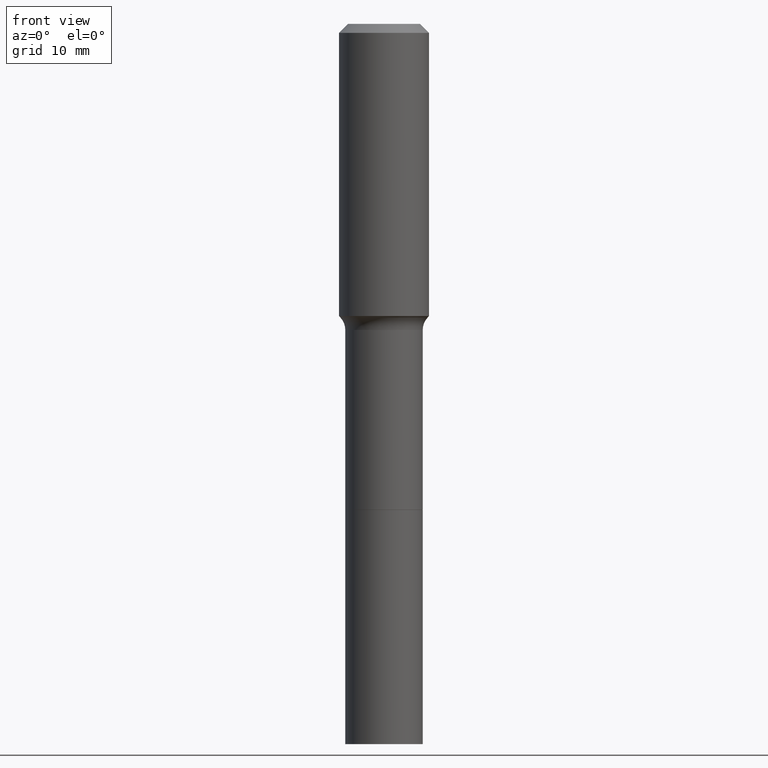
[diagram: clean part render]
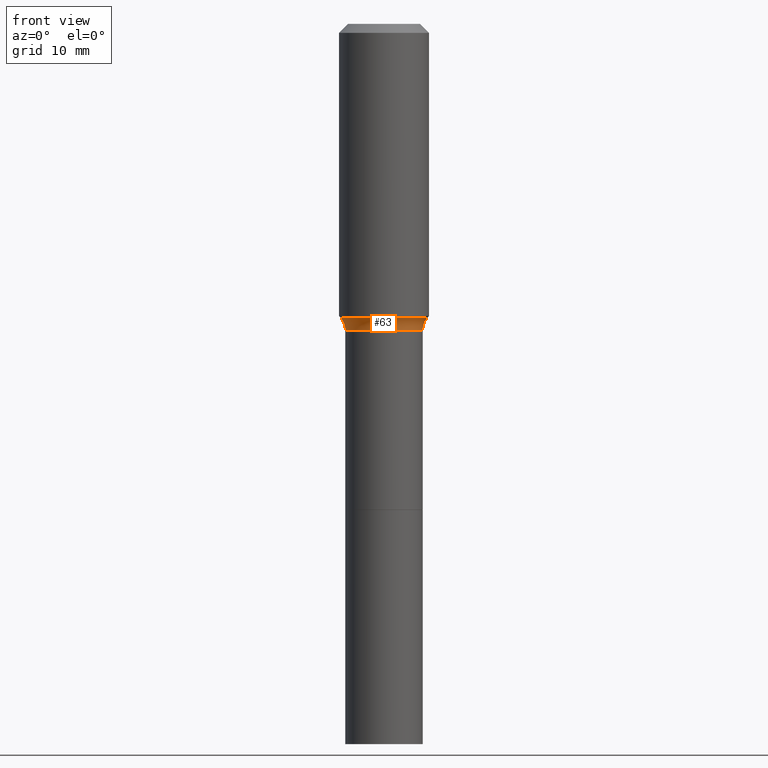
[diagram: same view with one face highlighted and labeled with its STEP entity id]
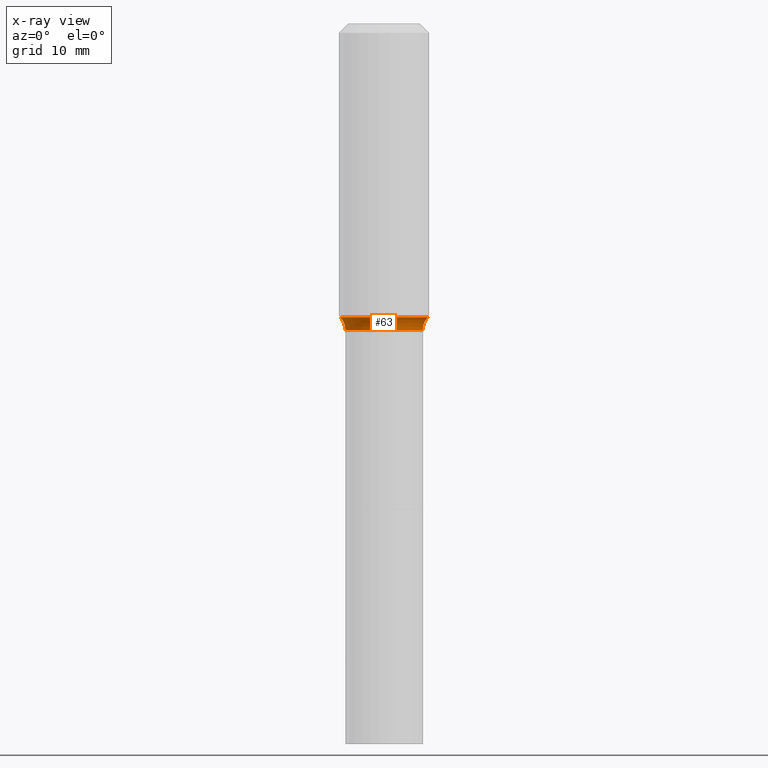
[diagram: x-ray of the same camera — body ghosted, the highlighted face saturated]
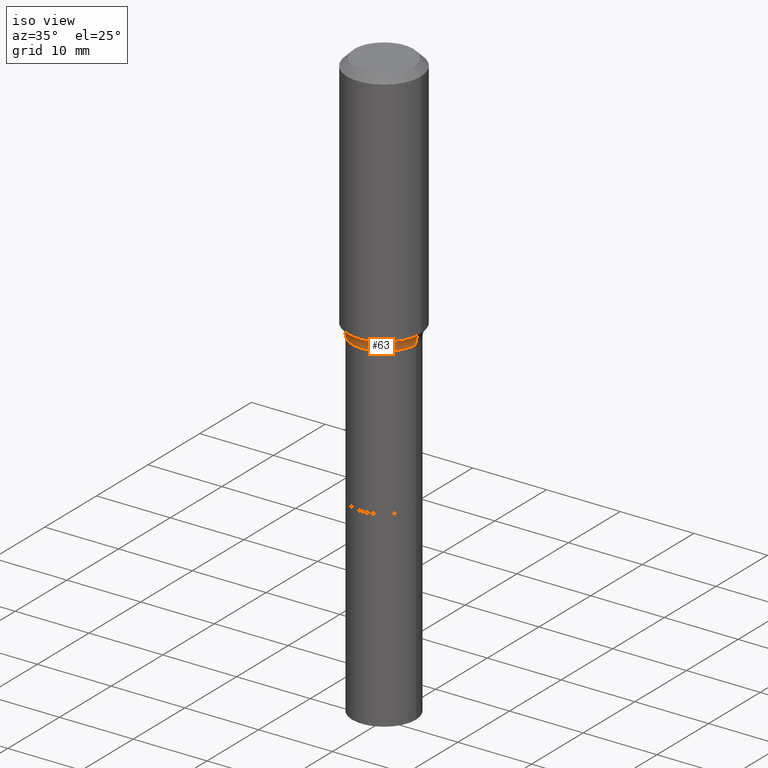
[diagram: same view with one face highlighted and labeled with its STEP entity id]
A machine part, front view. The second image highlights one B-rep face of the part: STEP entity #63.
The next image is the same camera in x-ray: the body ghosted, the highlighted face saturated — about 0% of this face is hidden behind the body in this view.
A second angle (iso view) of the same face is appended — the face is thin or edge-on in the first view.
In plain terms, the highlighted toroidal blend (fillet) surface has major radius 6.3322 mm and minor (blend) radius 2.032 mm.
Its self-contained STEP definition (entity closure, byte-faithful):
#5 = DIRECTION ( 'NONE',  ( -2.445468806185136597E-29, 3.491481338843145583E-15, 1.000000000000000000 ) ) ;
#6 = FACE_OUTER_BOUND ( 'NONE', #312, .T. ) ;
#8 = EDGE_CURVE ( 'NONE', #498, #374, #168, .T. ) ;
#46 = CARTESIAN_POINT ( 'NONE',  ( -0.1907917038704664281, -3.127545564108527340E-15, -1.284040131195000489 ) ) ;
#55 = CIRCLE ( 'NONE', #427, 0.07999999999999990452 ) ;
#59 = VERTEX_POINT ( 'NONE', #46 ) ;
#63 = ADVANCED_FACE ( 'NONE', ( #6 ), #507, .F. ) ;
#73 = DIRECTION ( 'NONE',  ( 1.000000000000000000, -6.982962677686268288E-15, 0.000000000000000000 ) ) ;
#78 = AXIS2_PLACEMENT_3D ( 'NONE', #276, #205, #82 ) ;
#82 = DIRECTION ( 'NONE',  ( 1.000000000000000000, -6.982962677686268288E-15, 0.000000000000000000 ) ) ;
#84 = EDGE_CURVE ( 'NONE', #59, #498, #55, .T. ) ;
#85 = CARTESIAN_POINT ( 'NONE',  ( -0.1692999999999999228, -4.843773105033653251E-15, -1.338600000000000234 ) ) ;
#87 = AXIS2_PLACEMENT_3D ( 'NONE', #442, #285, #284 ) ;
#88 = DIRECTION ( 'NONE',  ( 7.105427357601001859E-15, 1.000000000000000000, -3.491481338843145583E-15 ) ) ;
#120 = ORIENTED_EDGE ( 'NONE', *, *, #84, .T. ) ;
#124 = CARTESIAN_POINT ( 'NONE',  ( 0.1907917038704664281, -5.815493503732685014E-15, -1.284040131195000489 ) ) ;
#129 = CIRCLE ( 'NONE', #169, 0.1907917038704664836 ) ;
#163 = DIRECTION ( 'NONE',  ( 1.000000000000000000, -6.982962677686263555E-15, 0.000000000000000000 ) ) ;
#168 = CIRCLE ( 'NONE', #294, 0.1692999999999999228 ) ;
#169 = AXIS2_PLACEMENT_3D ( 'NONE', #360, #5, #163 ) ;
#174 = CARTESIAN_POINT ( 'NONE',  ( -0.2492999999999999106, -2.902313879925506398E-15, -1.338600000000000234 ) ) ;
#175 = ORIENTED_EDGE ( 'NONE', *, *, #8, .T. ) ;
#192 = DIRECTION ( 'NONE',  ( -2.445468806185136597E-29, 3.491481338843145583E-15, 1.000000000000000000 ) ) ;
#205 = DIRECTION ( 'NONE',  ( -6.982962677686266711E-15, -1.000000000000000000, 3.491481338843145583E-15 ) ) ;
#270 = CARTESIAN_POINT ( 'NONE',  ( 0.1692999999999999228, -5.855912501507720341E-15, -1.338600000000000234 ) ) ;
#276 = CARTESIAN_POINT ( 'NONE',  ( 0.2492999999999999106, -6.414549515722621204E-15, -1.338600000000000234 ) ) ;
#284 = DIRECTION ( 'NONE',  ( 1.000000000000000000, -6.982962677686265922E-15, 4.883557194083112340E-29 ) ) ;
#285 = DIRECTION ( 'NONE',  ( -2.445468806185136597E-29, 3.491481338843145583E-15, 1.000000000000000000 ) ) ;
#294 = AXIS2_PLACEMENT_3D ( 'NONE', #481, #192, #73 ) ;
#295 = CIRCLE ( 'NONE', #78, 0.07999999999999990452 ) ;
#312 = EDGE_LOOP ( 'NONE', ( #465, #120, #175, #396 ) ) ;
#360 = CARTESIAN_POINT ( 'NONE',  ( 3.140080086727243582E-29, -4.483202156393049043E-15, -1.284040131195000489 ) ) ;
#374 = VERTEX_POINT ( 'NONE', #270 ) ;
#396 = ORIENTED_EDGE ( 'NONE', *, *, #430, .F. ) ;
#427 = AXIS2_PLACEMENT_3D ( 'NONE', #174, #88, #496 ) ;
#430 = EDGE_CURVE ( 'NONE', #495, #374, #295, .T. ) ;
#442 = CARTESIAN_POINT ( 'NONE',  ( 3.273504543959424474E-29, -4.673696920175435525E-15, -1.338600000000000234 ) ) ;
#465 = ORIENTED_EDGE ( 'NONE', *, *, #491, .F. ) ;
#481 = CARTESIAN_POINT ( 'NONE',  ( 3.273504543959424474E-29, -4.673696920175435525E-15, -1.338600000000000234 ) ) ;
#491 = EDGE_CURVE ( 'NONE', #59, #495, #129, .T. ) ;
#495 = VERTEX_POINT ( 'NONE', #124 ) ;
#496 = DIRECTION ( 'NONE',  ( -1.000000000000000000, 7.105427357601001859E-15, 0.000000000000000000 ) ) ;
#498 = VERTEX_POINT ( 'NONE', #85 ) ;
#507 = TOROIDAL_SURFACE ( 'NONE', #87, 0.2492999999999999106, 0.07999999999999993228 ) ;